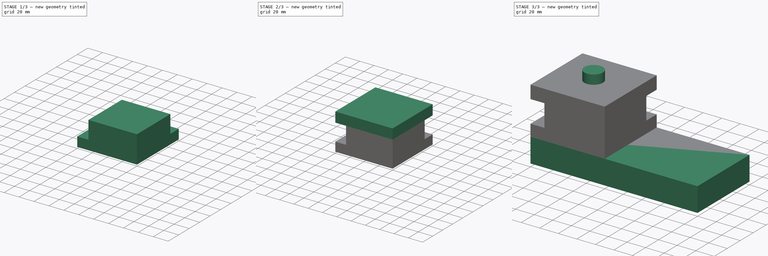
[diagram: build sequence overview — one tinted view per stage of 3, left to right]
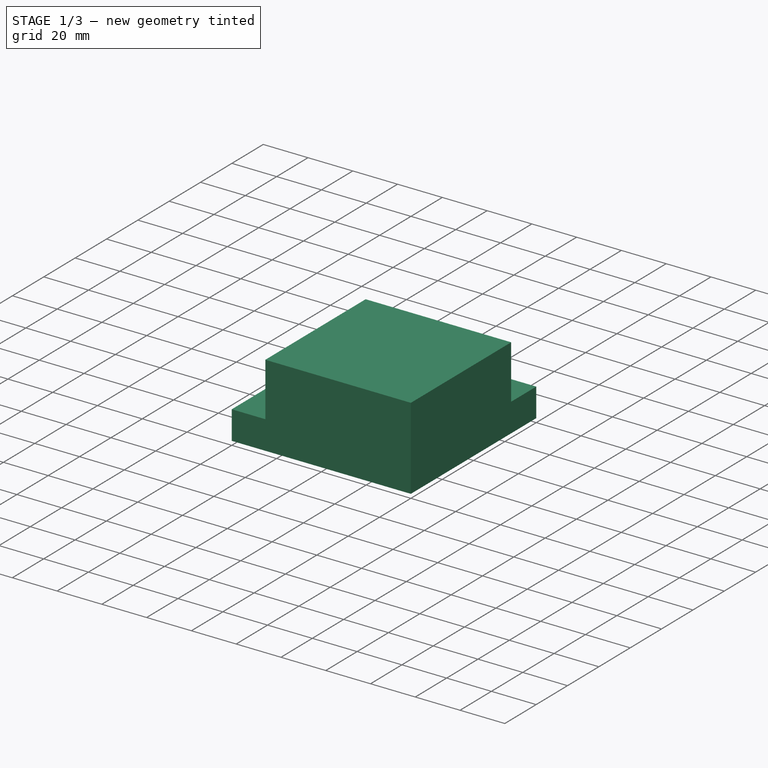
[diagram: stage 1 of 3 — iso view after this stage's code; geometry added in this stage tinted green]
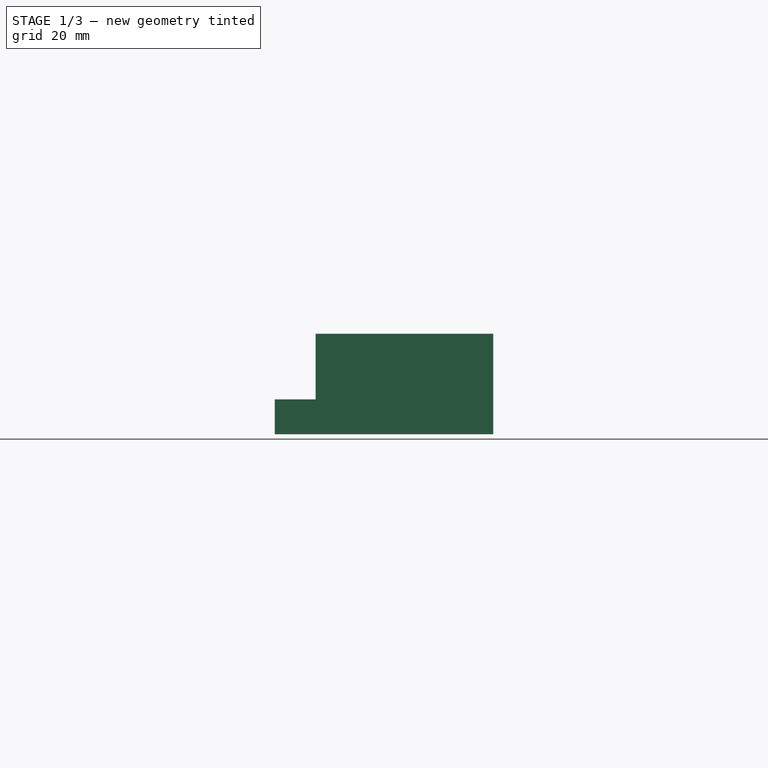
[diagram: stage 1 of 3 — front view after this stage's code; geometry added in this stage tinted green]
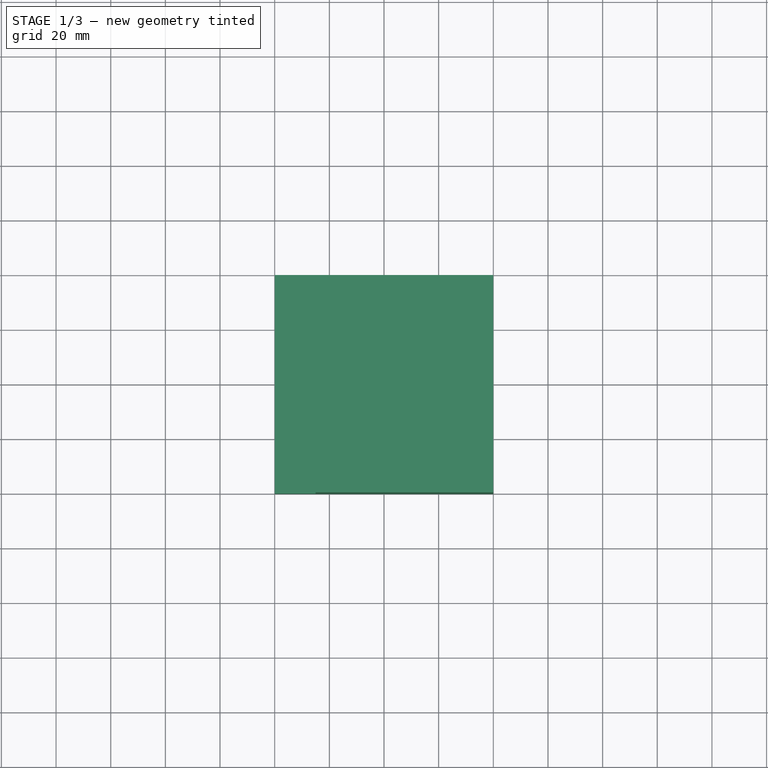
[diagram: stage 1 of 3 — top view after this stage's code; geometry added in this stage tinted green]
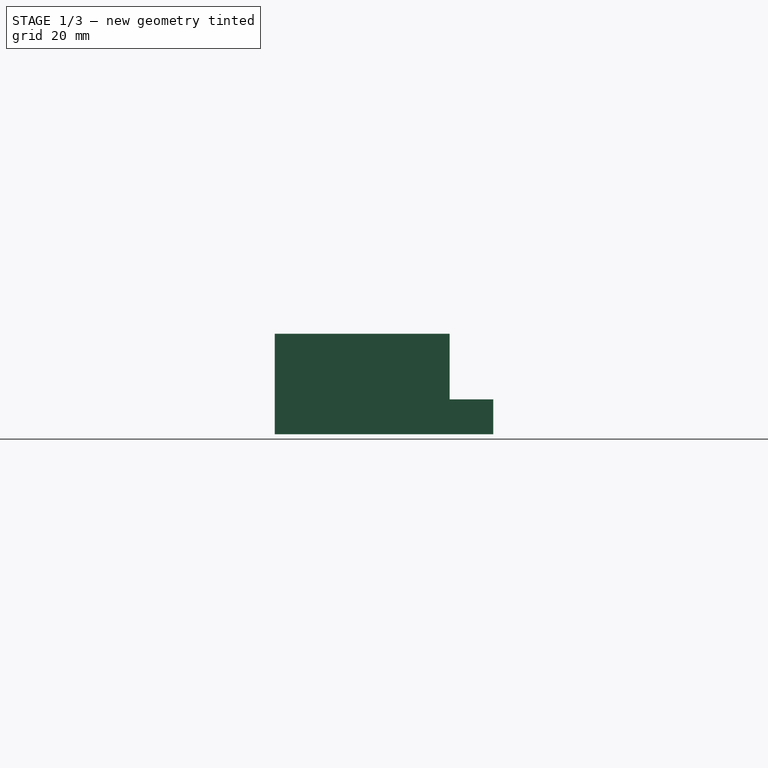
[diagram: stage 1 of 3 — right view after this stage's code; geometry added in this stage tinted green]
FCSTD DOCUMENT  (FreeCAD 0.21R31155 (Git))
Label: ToolPost
License: All rights reserved
LicenseURL: http://en.wikipedia.org/wiki/All_rights_reserved
objects: Sketcher::SketchObject×5, PartDesign::Pad×5, PartDesign::Body×2, PartDesign::CoordinateSystem×2, Spreadsheet::Sheet×1, App::Part×1
note: 19 computed .brp shape members not serialized (recipe doc carries the construction recipe); baked Part::Feature solids carry a one-line shape summary decoded from their .brp

FEATURE [PartDesign::Body] Body  label="Base"
  Group = -> [Sketch,Pad]
  Origin = -> Origin001
  Tip = -> Pad
FEATURE [Sketcher::SketchObject] Sketch001
  AttachmentOffset = pos=(0,0,26) rot=(0,0,1;0rad)
  FullyConstrained = true
  MapMode = 5
  Placement = pos=(0,0,26) rot=(0,0,1;0rad)
  Support = -> [XY_Plane002]
  expr: .AttachmentOffset.Base.z = Spreadsheet.BaseHeight
  expr: Constraints[8] = Spreadsheet.ToolPostLength
  expr: Constraints[9] = Spreadsheet.ToolPostWidth
  sketch-geometry (4):
    g0: LineSegment StartX=0 StartY=40 StartZ=0 EndX=80 EndY=40 EndZ=0
    g1: LineSegment StartX=80 StartY=40 StartZ=0 EndX=80 EndY=-40 EndZ=0
    g2: LineSegment StartX=80 StartY=-40 StartZ=0 EndX=0 EndY=-40 EndZ=0
    g3: LineSegment StartX=0 StartY=-40 StartZ=0 EndX=0 EndY=40 EndZ=0
  constraints (11):
    c: Coincident(g0,g1)
    c: Coincident(g1,g2)
    c: Coincident(g2,g3)
    c: Coincident(g3,g0)
    c: Horizontal(g0)
    c: Horizontal(g2)
    c: Vertical(g1)
    c: Vertical(g3)
    c: DistanceX(g0,g0) = 80
    c: DistanceY(g3,g3) = 80
    c: Symmetric(g2,g0,g-1)
FEATURE [PartDesign::Pad] Pad001  label="ToolPost001"
  Direction = (0,0,1)
  Length = 12.75
  Length2 = 10
  Profile = -> Sketch001
  ReferenceAxis = -> Sketch001 [N_Axis]
  Type = 0
  expr: Length = Spreadsheet.ToolPostThickness
FEATURE [Sketcher::SketchObject] Sketch002
  FullyConstrained = true
  MapMode = 5
  Placement = pos=(0,0,38.75) rot=(0,0,1;0rad)
  Support = -> [Pad001]
  expr: Constraints[10] = Spreadsheet.ToolPostWidth / 2
  expr: Constraints[11] = Spreadsheet.ToolPostLength
  expr: Constraints[8] = Spreadsheet.ToolBlockLength
  expr: Constraints[9] = Spreadsheet.ToolBlockWidth
  sketch-geometry (4):
    g0: LineSegment StartX=15 StartY=24 StartZ=0 EndX=80 EndY=24 EndZ=0
    g1: LineSegment StartX=80 StartY=24 StartZ=0 EndX=80 EndY=-40 EndZ=0
    g2: LineSegment StartX=80 StartY=-40 StartZ=0 EndX=15 EndY=-40 EndZ=0
    g3: LineSegment StartX=15 StartY=-40 StartZ=0 EndX=15 EndY=24 EndZ=0
  constraints (12):
    c: Coincident(g0,g1)
    c: Coincident(g1,g2)
    c: Coincident(g2,g3)
    c: Coincident(g3,g0)
    c: Horizontal(g0)
    c: Horizontal(g2)
    c: Vertical(g1)
    c: Vertical(g3)
    c: DistanceX(g2,g2) = 65
    c: DistanceY(g1,g1) = 64
    c: DistanceY(g2,g-1) = 40
    c: DistanceX(g-1,g1) = 80
FEATURE [PartDesign::Pad] Pad002  label="ToolBlock"
  BaseFeature = -> Pad001
  Direction = (0,0,1)
  Length = 24
  Length2 = 10
  Profile = -> Sketch002
  ReferenceAxis = -> Sketch002 [N_Axis]
  Type = 0
  expr: Length = Spreadsheet.ToolBlockThicknes
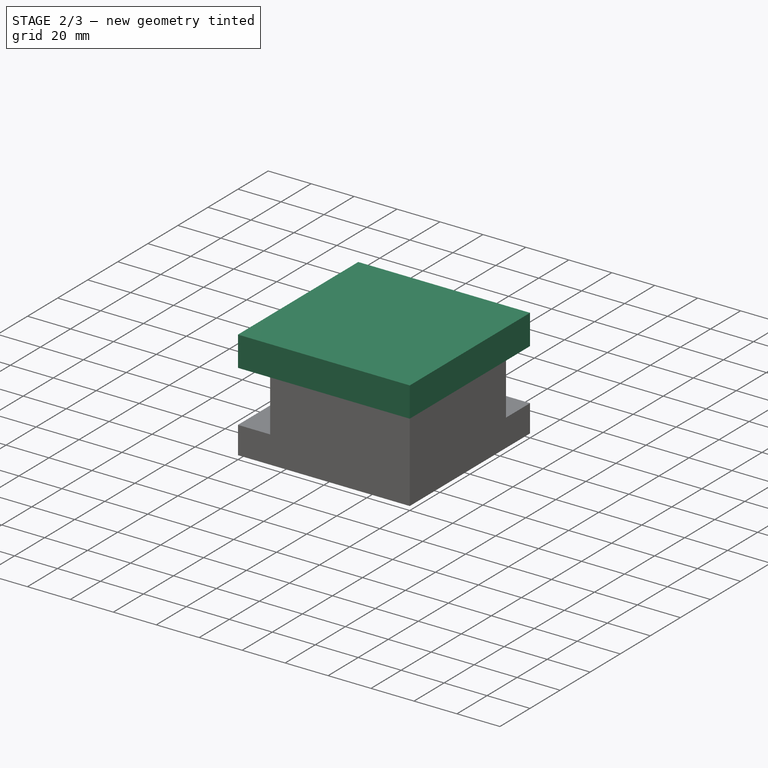
[diagram: stage 2 of 3 — iso view after this stage's code; geometry added in this stage tinted green]
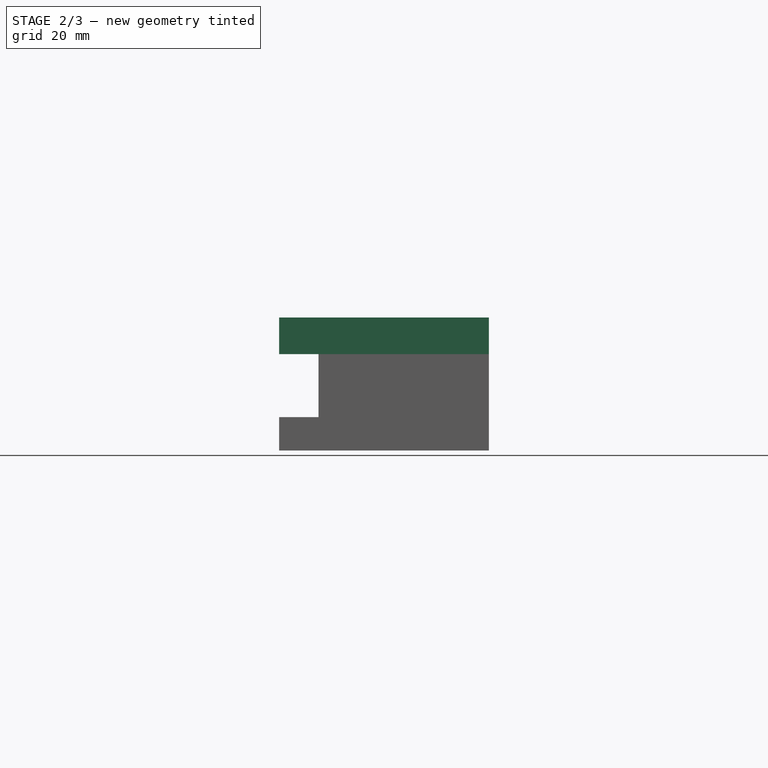
[diagram: stage 2 of 3 — front view after this stage's code; geometry added in this stage tinted green]
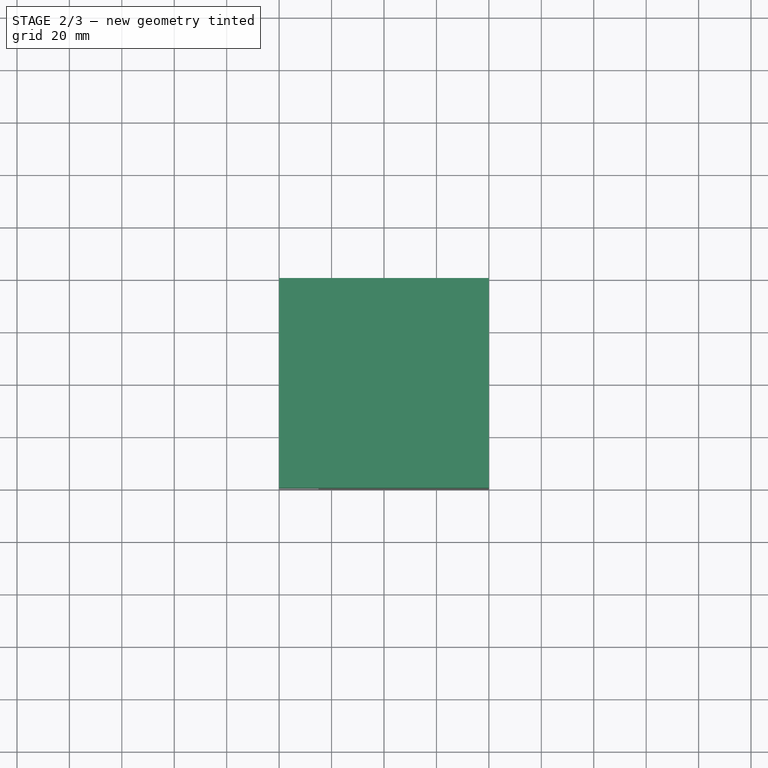
[diagram: stage 2 of 3 — top view after this stage's code; geometry added in this stage tinted green]
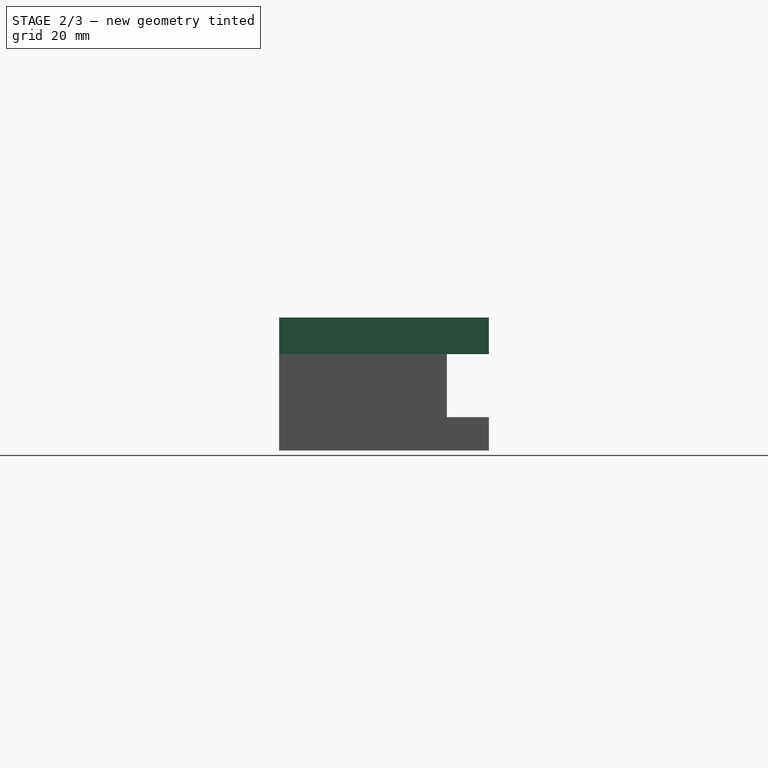
[diagram: stage 2 of 3 — right view after this stage's code; geometry added in this stage tinted green]
FEATURE [Sketcher::SketchObject] Sketch003
  FullyConstrained = true
  MapMode = 5
  Placement = pos=(0,0,62.75) rot=(0,0,1;0rad)
  Support = -> [Pad002]
  expr: Constraints[8] = Spreadsheet.ToolPostWidth
  expr: Constraints[9] = Spreadsheet.ToolPostLength
  sketch-geometry (4):
    g0: LineSegment StartX=0 StartY=40 StartZ=0 EndX=80 EndY=40 EndZ=0
    g1: LineSegment StartX=80 StartY=40 StartZ=0 EndX=80 EndY=-40 EndZ=0
    g2: LineSegment StartX=80 StartY=-40 StartZ=0 EndX=0 EndY=-40 EndZ=0
    g3: LineSegment StartX=0 StartY=-40 StartZ=0 EndX=0 EndY=40 EndZ=0
  constraints (11):
    c: Coincident(g0,g1)
    c: Coincident(g1,g2)
    c: Coincident(g2,g3)
    c: Coincident(g3,g0)
    c: Horizontal(g0)
    c: Horizontal(g2)
    c: Vertical(g1)
    c: Vertical(g3)
    c: DistanceY(g3,g3) = 80
    c: DistanceX(g0,g0) = 80
    c: Symmetric(g2,g0,g-1)
FEATURE [PartDesign::Pad] Pad003  label="Top"
  BaseFeature = -> Pad002
  Direction = (0,0,1)
  Length = 14
  Length2 = 10
  Profile = -> Sketch003
  ReferenceAxis = -> Sketch003 [N_Axis]
  Type = 0
  expr: Length = Spreadsheet.TopThickness
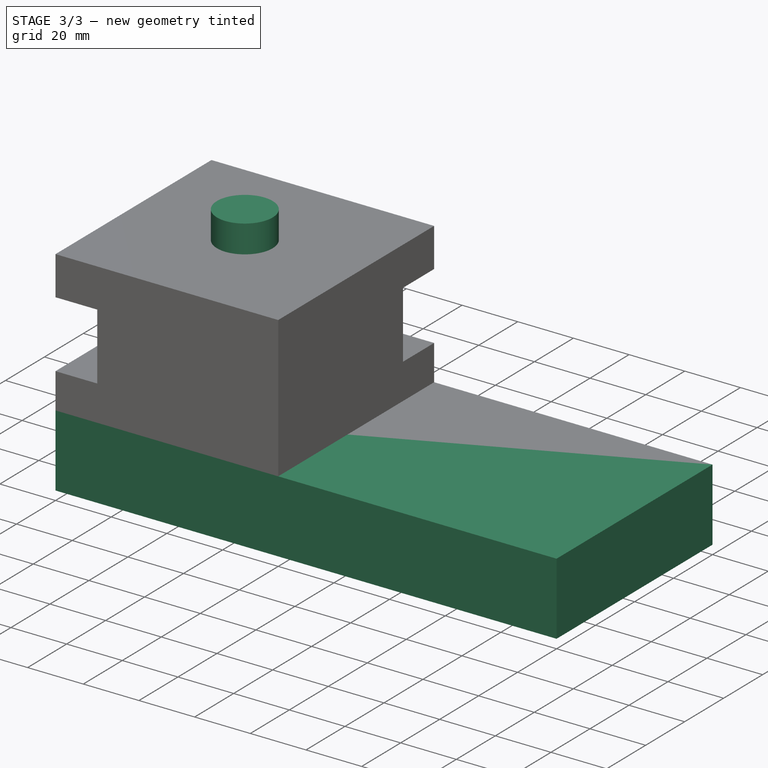
[diagram: stage 3 of 3 — iso view after this stage's code; geometry added in this stage tinted green]
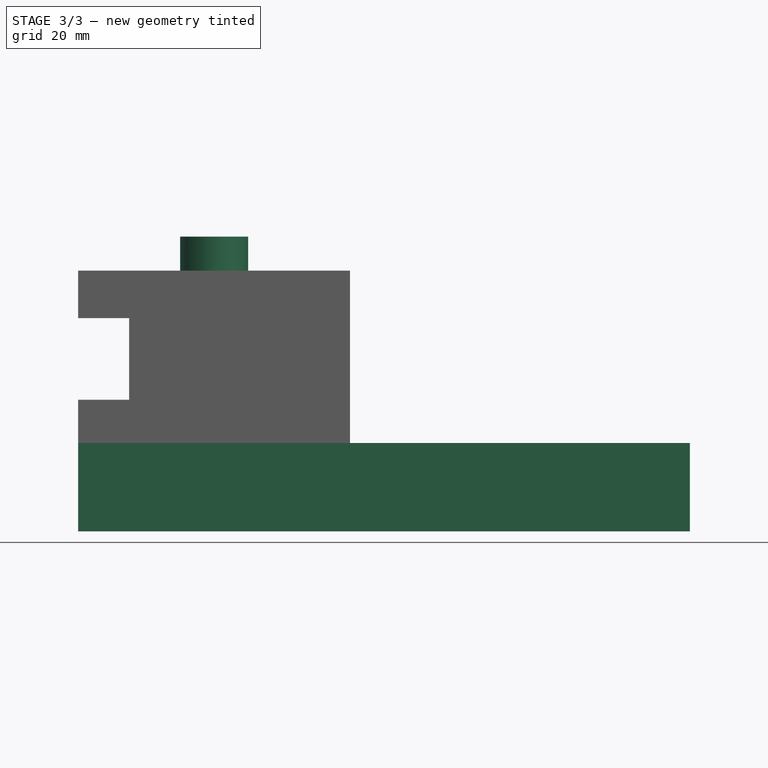
[diagram: stage 3 of 3 — front view after this stage's code; geometry added in this stage tinted green]
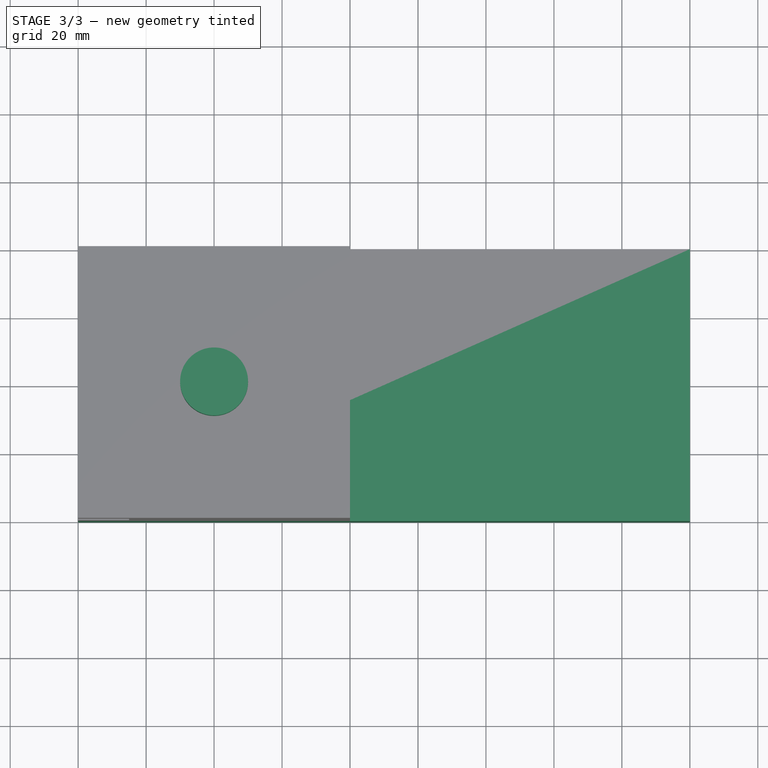
[diagram: stage 3 of 3 — top view after this stage's code; geometry added in this stage tinted green]
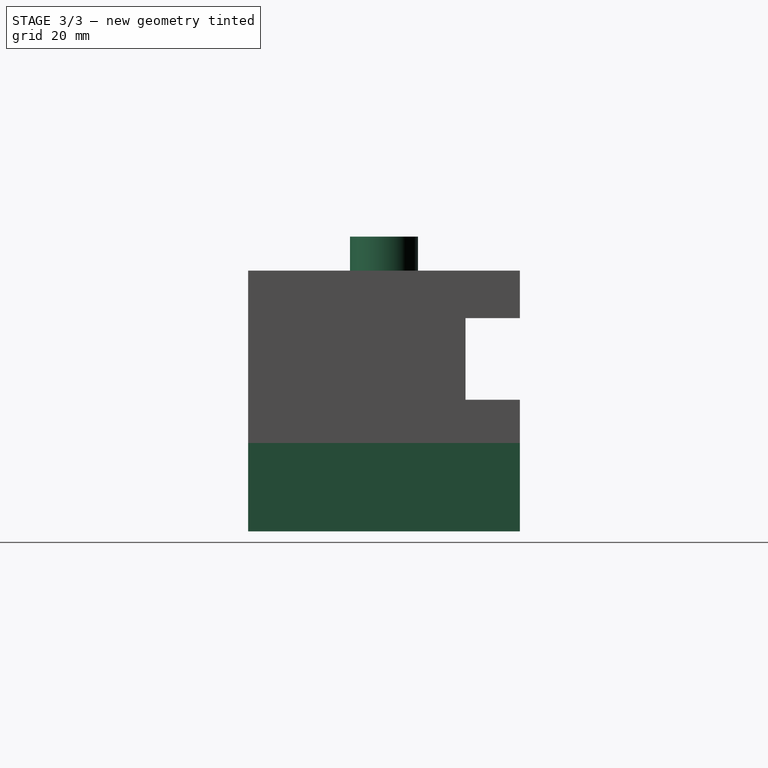
[diagram: stage 3 of 3 — right view after this stage's code; geometry added in this stage tinted green]
FEATURE [Spreadsheet::Sheet] Spreadsheet
  Configuration = 0
  cells = A4=Part; B4=BaseWidth; C4=BaseLength; D4=BaseHeight; E4=ToolPostWidth; F4=ToolPostLength; G4=ToolPostThickness; H4=ToolBlockWidth; I4=ToolBlockLength; J4=ToolBlockThicknes; K4=TopThickness; A5==hiddenref(.Configuration.String); B5(BaseWidth)==.B6; C5(BaseLength)==.C6; D5(BaseHeight)==.D6; E5(ToolPostWidth)==.E6; F5(ToolPostLength)==.F6; G5(ToolPostThickness)==.G6; H5(ToolBlockWidth)==.H6; I5(ToolBlockLength)==.I6; J5(ToolBlockThicknes)==.J6; K5(TopThickness)==.K6; A6=BF290 QCTP; B6=80; C6=180; D6=26; E6=80; F6=80; G6=12.75; H6=64; I6=65; J6=24; K6=14; A12=CalculatedFields; A13=Test; B13(Test)==BaseWidth + BaseLength
  expr: .Configuration.Enum = cells[<<A6:|>>]
  expr: .cells.Bind.B5.ZZ5 = tuple(.cells; <<B>> + str(hiddenref(Configuration) + 6); <<ZZ>> + str(hiddenref(Configuration) + 6))
FEATURE [Sketcher::SketchObject] Sketch
  FullyConstrained = true
  MapMode = 5
  Support = -> [XY_Plane001]
  expr: Constraints[8] = Spreadsheet.BaseWidth
  expr: Constraints[9] = Spreadsheet.BaseLength
  sketch-geometry (4):
    g0: LineSegment StartX=0 StartY=-40 StartZ=0 EndX=180 EndY=-40 EndZ=0
    g1: LineSegment StartX=180 StartY=-40 StartZ=0 EndX=180 EndY=40 EndZ=0
    g2: LineSegment StartX=180 StartY=40 StartZ=0 EndX=0 EndY=40 EndZ=0
    g3: LineSegment StartX=0 StartY=40 StartZ=0 EndX=0 EndY=-40 EndZ=0
  constraints (11):
    c: Coincident(g0,g1)
    c: Coincident(g1,g2)
    c: Coincident(g2,g3)
    c: Coincident(g3,g0)
    c: Horizontal(g0)
    c: Horizontal(g2)
    c: Vertical(g1)
    c: Vertical(g3)
    c: DistanceY(g3,g3) = 80
    c: DistanceX(g2,g2) = 180
    c: Symmetric(g2,g0,g-1)
FEATURE [PartDesign::Pad] Pad
  Direction = (0,0,1)
  Length = 26
  Length2 = 10
  Profile = -> Sketch
  ReferenceAxis = -> Sketch [N_Axis]
  Type = 0
  expr: Length = Spreadsheet.BaseHeight
FEATURE [PartDesign::CoordinateSystem] ToolBackRight
  AttacherType = Attacher::AttachEngine3D
  MapMode = 14
  Placement = pos=(80,24,38.75) rot=(1,0,0;1.5708rad)
  Support = -> [Pad003]
FEATURE [PartDesign::CoordinateSystem] ToolLeftBack
  AttacherType = Attacher::AttachEngine3D
  MapMode = 1
  Placement = pos=(15,-40,38.75) rot=(0,0,1;0rad)
  Support = -> [Pad003]
FEATURE [Sketcher::SketchObject] Sketch004
  FullyConstrained = true
  MapMode = 5
  Placement = pos=(0,0,76.75) rot=(0,0,1;0rad)
  Support = -> [Pad003]
  expr: Constraints[2] = Spreadsheet.ToolPostLength / 2
  sketch-geometry (1):
    g0: Circle CenterX=40 CenterY=0 CenterZ=0 NormalX=0 NormalY=0 NormalZ=1 AngleXU=0 Radius=10
  constraints (3):
    c: PointOnObject(g0,g-1)
    c: Diameter(g0) = 20
    c: DistanceX(g-1,g0) = 40
FEATURE [PartDesign::Pad] Pad004
  BaseFeature = -> Pad003
  Direction = (0,0,1)
  Length = 10
  Length2 = 10
  Profile = -> Sketch004
  ReferenceAxis = -> Sketch004 [N_Axis]
  Type = 0
FEATURE [PartDesign::Body] Body001  label="ToolHolder"
  Group = -> [Sketch001,Pad001,Sketch002,Pad002,Sketch003,Pad003,Sketch004,Pad004]
  Origin = -> Origin002
  Tip = -> Pad004
FEATURE [App::Part] Part  label="TopSlide"
  Group = -> [Body,Body001,ToolBackRight,ToolLeftBack]
  Origin = -> Origin
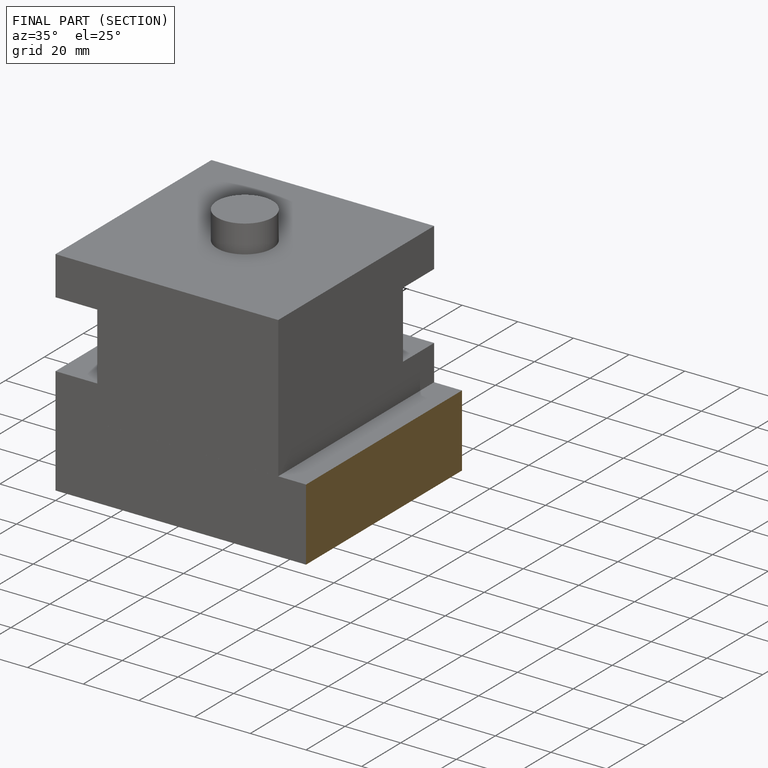
[diagram: finished part — half-section view (interior)]
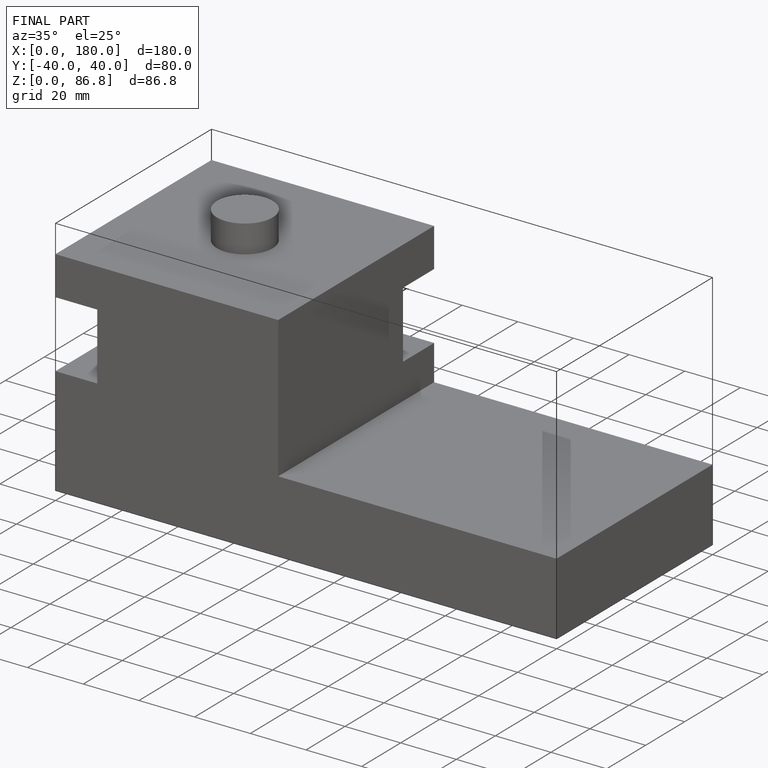
[diagram: finished part — iso view with bounding-box wireframe]
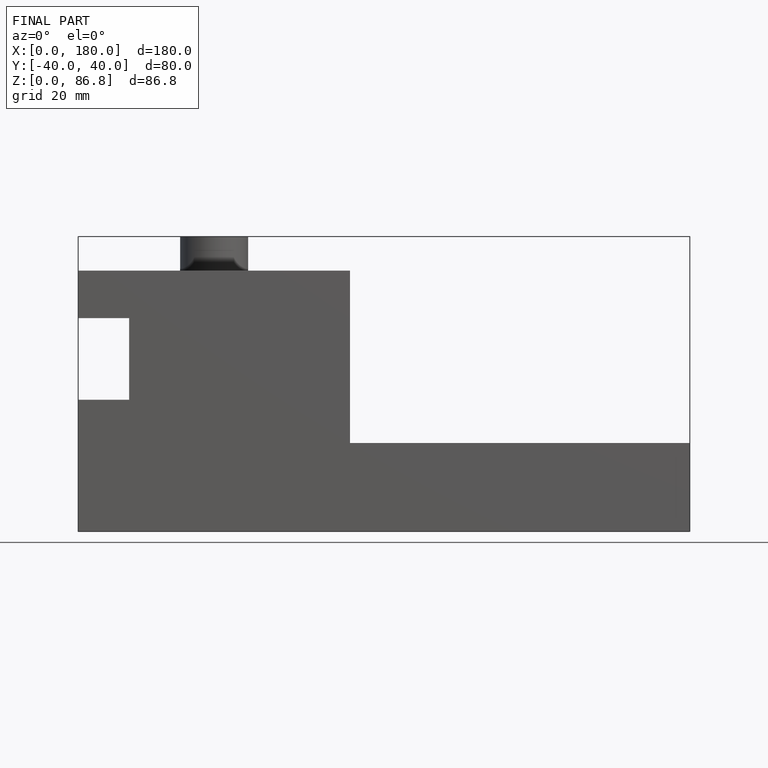
[diagram: finished part — front view with bounding-box wireframe]
